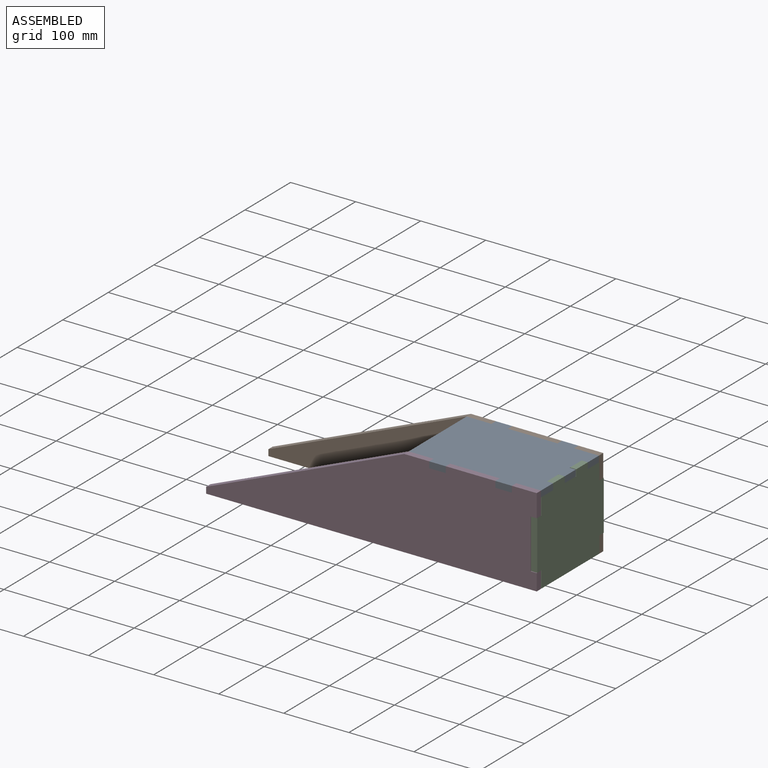
[diagram: assembled view]
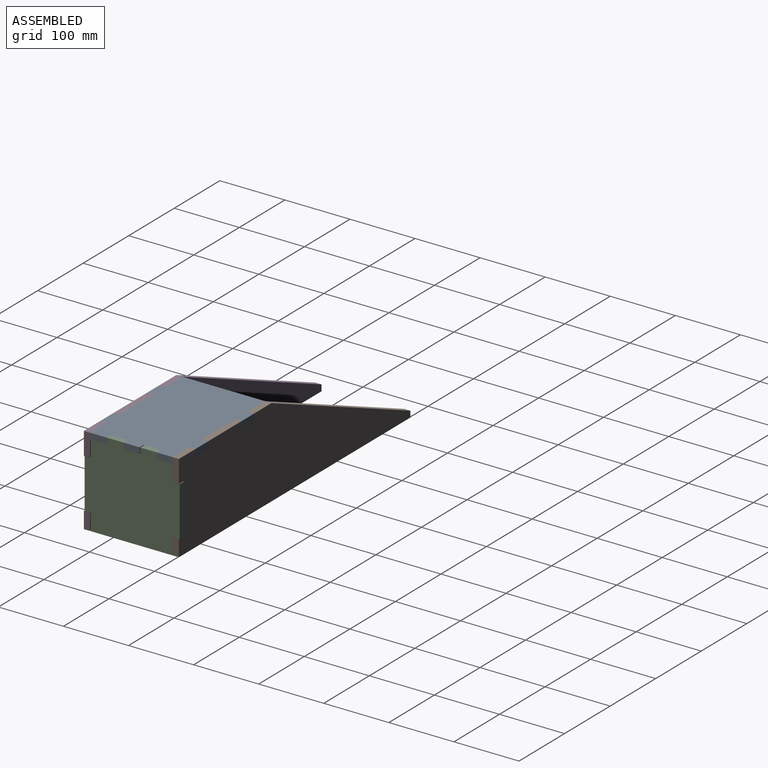
[diagram: assembled view, second angle]
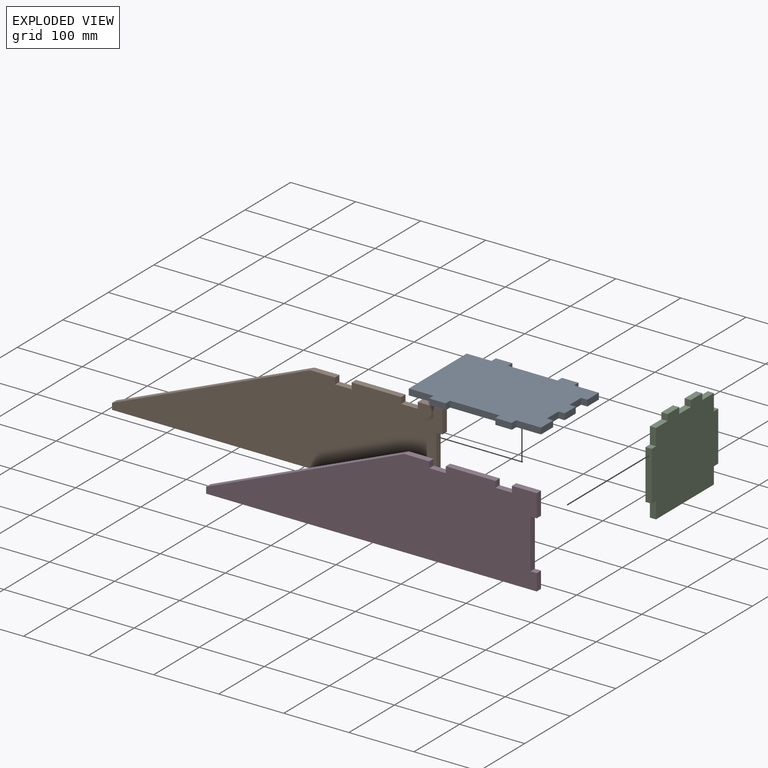
[diagram: exploded view]
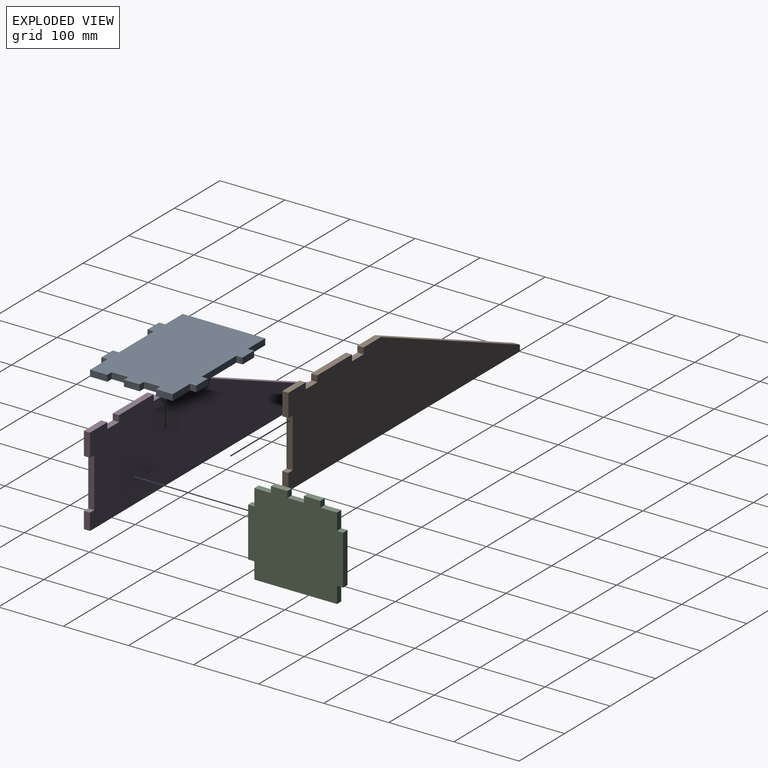
[diagram: exploded view, second angle]
ASSEMBLY  parts=4 mates=3
PART A: 30 faces, bbox 203.2x146.1x9.5 mm
  f0: plane 25.4x9.53mm, normal (1,0,0), area 241.9mm2, adj f2,f3,f17,f28
  f1: plane 24.27x9.53mm, normal (1,0,0), area 231.1mm2, adj f2,f3,f25,f27
  f2: plane 203.2x146.05mm, normal (0,0,1), area 26290.3mm2, adj f0,f1,f4,f5,f6,f7,f8,f9
  f3: plane 203.2x146.05mm, normal (0,0,-1), area 26290.3mm2, adj f0,f1,f4,f5,f6,f7,f8,f9
  f4: plane 9.53x9.53mm, normal (-1,0,0), area 90.7mm2, adj f2,f3,f5,f23
  f5: plane 38.1x9.53mm, normal (0,1,0), area 362.9mm2, adj f2,f3,f4,f6
  f6: plane 127x9.53mm, normal (-1,0,0), area 1209.7mm2, adj f2,f3,f5,f7
  f7: plane 38.1x9.53mm, normal (0,-1,0), area 362.9mm2, adj f2,f3,f6,f8
  f8: plane 9.53x9.53mm, normal (-1,0,0), area 90.7mm2, adj f2,f3,f7,f9
  f9: plane 25.4x9.53mm, normal (0,-1,0), area 241.9mm2, adj f2,f3,f8,f10
  f10: plane 9.53x9.53mm, normal (1,0,0), area 90.7mm2, adj f2,f3,f9,f11
  f11: plane 76.2x9.53mm, normal (0,-1,0), area 725.8mm2, adj f2,f3,f10,f12
  f12: plane 9.53x9.53mm, normal (-1,0,0), area 90.7mm2, adj f2,f3,f11,f13
  f13: plane 25.4x9.53mm, normal (0,-1,0), area 241.9mm2, adj f2,f3,f12,f14
  f14: plane 9.53x9.53mm, normal (1,0,0), area 90.7mm2, adj f2,f3,f13,f15
  f15: plane 38.1x9.53mm, normal (0,-1,0), area 362.9mm2, adj f2,f3,f14,f16
  f16: plane 26.53x9.53mm, normal (1,0,0), area 252.7mm2, adj f2,f3,f15,f24
  f17: plane 38.1x9.53mm, normal (0,1,0), area 362.9mm2, adj f0,f2,f3,f18
  f18: plane 9.53x9.53mm, normal (1,0,0), area 90.7mm2, adj f2,f3,f17,f19
  f19: plane 25.4x9.53mm, normal (0,1,0), area 241.9mm2, adj f2,f3,f18,f20
  f20: plane 9.53x9.53mm, normal (-1,0,0), area 90.7mm2, adj f2,f3,f19,f21
  f21: plane 76.2x9.53mm, normal (0,1,0), area 725.8mm2, adj f2,f3,f20,f22
  f22: plane 9.53x9.53mm, normal (1,0,0), area 90.7mm2, adj f2,f3,f21,f23
  f23: plane 25.4x9.53mm, normal (0,1,0), area 241.9mm2, adj f2,f3,f4,f22
  f24: plane 9.53x9.53mm, normal (0,1,0), area 90.7mm2, adj f2,f3,f16,f26
  f25: plane 9.53x9.53mm, normal (0,-1,0), area 90.7mm2, adj f1,f2,f3,f26
  f26: plane 25.4x9.53mm, normal (1,0,0), area 241.9mm2, adj f2,f3,f24,f25
  f27: plane 9.53x9.53mm, normal (0,1,0), area 90.7mm2, adj f1,f2,f3,f29
  f28: plane 9.53x9.53mm, normal (0,-1,0), area 90.7mm2, adj f0,f2,f3,f29
  f29: plane 25.4x9.53mm, normal (1,0,0), area 241.9mm2, adj f2,f3,f27,f28
PART B: 19 faces, bbox 508x9.5x136.5 mm
  f0: plane 34.93x9.53mm, normal (1,0,0), area 332.7mm2, adj f5,f14,f15,f16
  f1: plane 304.8x127mm, normal (-0.38,0,0.92), area 3145.2mm2, adj f2,f13,f14,f15
  f2: plane 9.53x9.53mm, normal (-1,0,0), area 90.7mm2, adj f1,f3,f14,f15
  f3: plane 508x9.53mm, normal (0,0,-1), area 4838.7mm2, adj f2,f4,f14,f15
  f4: plane 25.4x9.53mm, normal (1,0,0), area 241.9mm2, adj f3,f14,f15,f18
  f5: plane 38.1x9.53mm, normal (0,0,1), area 362.9mm2, adj f0,f6,f14,f15
  f6: plane 9.53x9.53mm, normal (-1,0,0), area 90.7mm2, adj f5,f7,f14,f15
  f7: plane 25.4x9.53mm, normal (0,0,1), area 241.9mm2, adj f6,f8,f14,f15
  f8: plane 9.53x9.53mm, normal (1,0,0), area 90.7mm2, adj f7,f9,f14,f15
  f9: plane 76.2x9.53mm, normal (0,0,1), area 725.8mm2, adj f8,f10,f14,f15
  f10: plane 9.53x9.53mm, normal (-1,0,0), area 90.7mm2, adj f9,f11,f14,f15
  f11: plane 25.4x9.53mm, normal (0,0,1), area 241.9mm2, adj f10,f12,f14,f15
  f12: plane 9.53x9.53mm, normal (1,0,0), area 90.7mm2, adj f11,f13,f14,f15
  f13: plane 38.1x9.53mm, normal (0,0,1), area 362.9mm2, adj f1,f12,f14,f15
  f14: plane 508x136.53mm, normal (0,-1,0), area 48790.2mm2, adj f0,f1,f2,f3,f4,f5,f6,f7
  f15: plane 508x136.53mm, normal (0,1,0), area 48790.2mm2, adj f0,f1,f2,f3,f4,f5,f6,f7
  f16: plane 9.53x9.53mm, normal (0,0,-1), area 90.7mm2, adj f0,f14,f15,f17
  f17: plane 76.2x9.53mm, normal (1,0,0), area 725.8mm2, adj f14,f15,f16,f18
  f18: plane 9.53x9.53mm, normal (0,0,1), area 90.7mm2, adj f4,f14,f15,f17
PART C: 22 faces, bbox 9.5x146.1x136.5 mm
  f0: plane 25.4x9.53mm, normal (0,1,0), area 241.9mm2, adj f10,f14,f15,f21
  f1: plane 25.4x9.53mm, normal (0,-1,0), area 241.9mm2, adj f6,f14,f15,f17
  f2: plane 25.4x9.53mm, normal (0,0,1), area 241.9mm2, adj f3,f13,f14,f15
  f3: plane 9.53x9.53mm, normal (0,1,0), area 90.7mm2, adj f2,f4,f14,f15
  f4: plane 25.4x9.53mm, normal (0,0,1), area 241.9mm2, adj f3,f5,f14,f15
  f5: plane 9.53x9.53mm, normal (0,-1,0), area 90.7mm2, adj f4,f6,f14,f15
  f6: plane 25.4x9.53mm, normal (0,0,1), area 241.9mm2, adj f1,f5,f14,f15
  f7: plane 25.4x9.53mm, normal (0,-1,0), area 241.9mm2, adj f8,f14,f15,f16
  f8: plane 127x9.53mm, normal (0,0,-1), area 1209.7mm2, adj f7,f9,f14,f15
  f9: plane 25.4x9.53mm, normal (0,1,0), area 241.9mm2, adj f8,f14,f15,f19
  f10: plane 25.4x9.53mm, normal (0,0,1), area 241.9mm2, adj f0,f11,f14,f15
  f11: plane 9.53x9.53mm, normal (0,1,0), area 90.7mm2, adj f10,f12,f14,f15
  f12: plane 25.4x9.53mm, normal (0,0,1), area 241.9mm2, adj f11,f13,f14,f15
  f13: plane 9.53x9.53mm, normal (0,-1,0), area 90.7mm2, adj f2,f12,f14,f15
  f14: plane 146.05x136.53mm, normal (1,0,0), area 18064.5mm2, adj f0,f1,f2,f3,f4,f5,f6,f7
  f15: plane 146.05x136.53mm, normal (-1,0,0), area 18064.5mm2, adj f0,f1,f2,f3,f4,f5,f6,f7
  f16: plane 9.53x9.53mm, normal (0,0,-1), area 90.7mm2, adj f7,f14,f15,f18
  f17: plane 9.53x9.53mm, normal (0,0,1), area 90.7mm2, adj f1,f14,f15,f18
  f18: plane 76.2x9.53mm, normal (0,-1,0), area 725.8mm2, adj f14,f15,f16,f17
  f19: plane 9.53x9.53mm, normal (0,0,-1), area 90.7mm2, adj f9,f14,f15,f20
  f20: plane 76.2x9.53mm, normal (0,1,0), area 725.8mm2, adj f14,f15,f19,f21
  f21: plane 9.53x9.53mm, normal (0,0,1), area 90.7mm2, adj f0,f14,f15,f20
PART D: same geometry as B
PLACE A t=(259.63,38.89,111.7)mm
PLACE B t=(30.36,111.35,-5.77)mm
PLACE C t=(353.26,35.45,37.48)mm
PLACE D t=(30.36,-25.18,-5.77)mm
MATE fastened C.f5 <-> A.f24  axis (0,-1,0) through (358.02,1.35,116.46)mm
MATE fastened A.f10 <-> D.f10  axis (1,0,0) through (223.08,-29.94,116.46)mm
MATE fastened A.f4 <-> B.f12  axis (-1,0,0) through (197.68,106.58,116.46)mm
